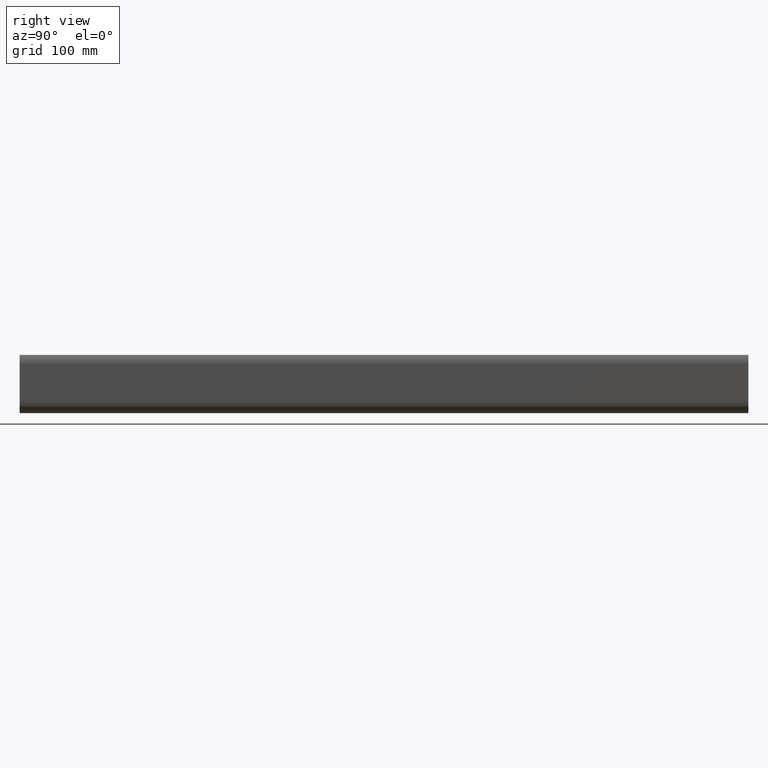
[diagram: clean part render]
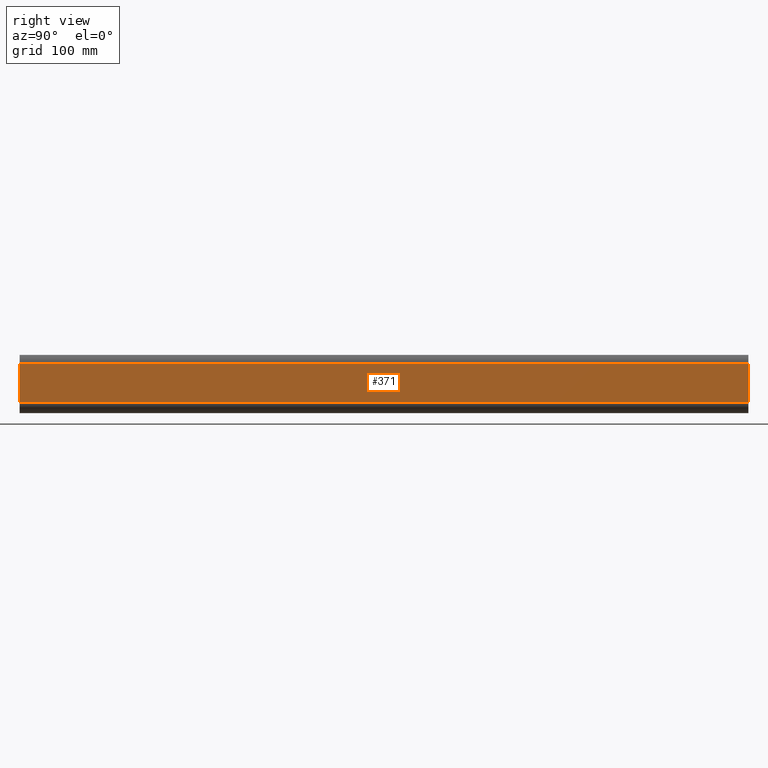
[diagram: same view with one face highlighted and labeled with its STEP entity id]
A machine part, right view. The second image highlights one B-rep face of the part: STEP entity #371.
In plain terms, the highlighted planar face has unit normal (1, 0, -0).
Its self-contained STEP definition (entity closure, byte-faithful):
#19=PLANE('',#423);
#34=FACE_OUTER_BOUND('',#54,.T.);
#54=EDGE_LOOP('',(#276,#277,#278,#279));
#80=LINE('',#614,#112);
#81=LINE('',#617,#113);
#82=LINE('',#619,#114);
#83=LINE('',#620,#115);
#112=VECTOR('',#499,10.);
#113=VECTOR('',#502,10.);
#114=VECTOR('',#503,10.);
#115=VECTOR('',#504,10.);
#170=VERTEX_POINT('',#610);
#171=VERTEX_POINT('',#612);
#172=VERTEX_POINT('',#616);
#173=VERTEX_POINT('',#618);
#214=EDGE_CURVE('',#170,#171,#80,.T.);
#215=EDGE_CURVE('',#172,#170,#81,.T.);
#216=EDGE_CURVE('',#173,#171,#82,.T.);
#217=EDGE_CURVE('',#172,#173,#83,.T.);
#276=ORIENTED_EDGE('',*,*,#215,.T.);
#277=ORIENTED_EDGE('',*,*,#214,.T.);
#278=ORIENTED_EDGE('',*,*,#216,.F.);
#279=ORIENTED_EDGE('',*,*,#217,.F.);
#371=ADVANCED_FACE('',(#34),#19,.T.);
#423=AXIS2_PLACEMENT_3D('',#615,#500,#501);
#499=DIRECTION('',(0.,1.,0.));
#500=DIRECTION('center_axis',(1.,0.,-2.53079858360968E-16));
#501=DIRECTION('ref_axis',(-2.53079858360968E-16,0.,-1.));
#502=DIRECTION('',(-2.53079858360968E-16,0.,-1.));
#503=DIRECTION('',(-2.53079858360968E-16,0.,-1.));
#504=DIRECTION('',(0.,1.,0.));
#610=CARTESIAN_POINT('',(15.,0.,-5.51091059616309E-15));
#612=CARTESIAN_POINT('',(15.,1000.,-4.44089209850063E-15));
#614=CARTESIAN_POINT('',(15.,0.,-5.51091059616309E-15));
#615=CARTESIAN_POINT('Origin',(15.,0.,52.6421833083995));
#616=CARTESIAN_POINT('',(15.,0.,52.6421833083995));
#617=CARTESIAN_POINT('',(15.,0.,52.6421833083995));
#618=CARTESIAN_POINT('',(15.,1000.,52.6421833083995));
#619=CARTESIAN_POINT('',(15.,1000.,52.6421833083995));
#620=CARTESIAN_POINT('',(15.,0.,52.6421833083995));